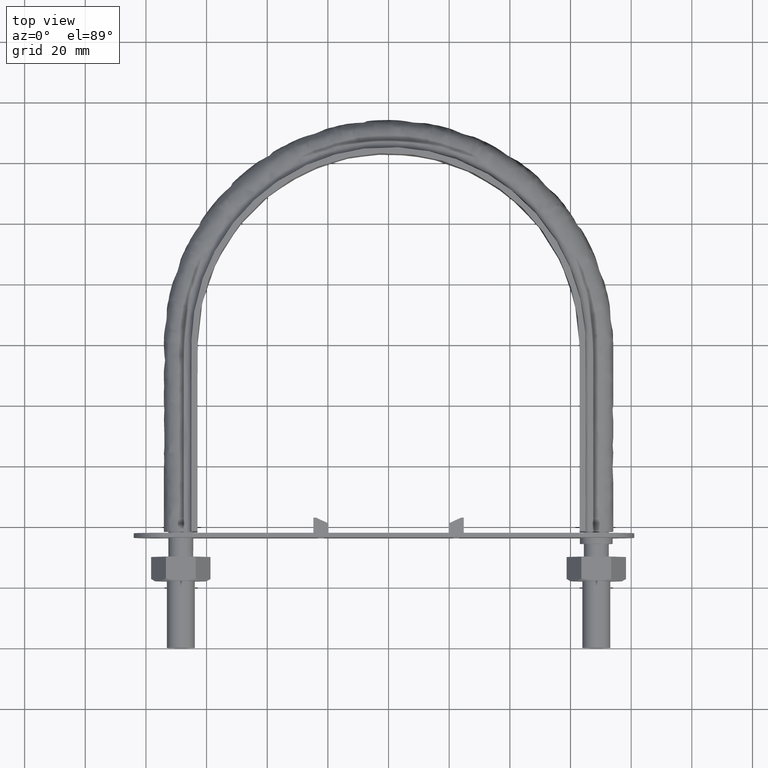
[diagram: clean part render]
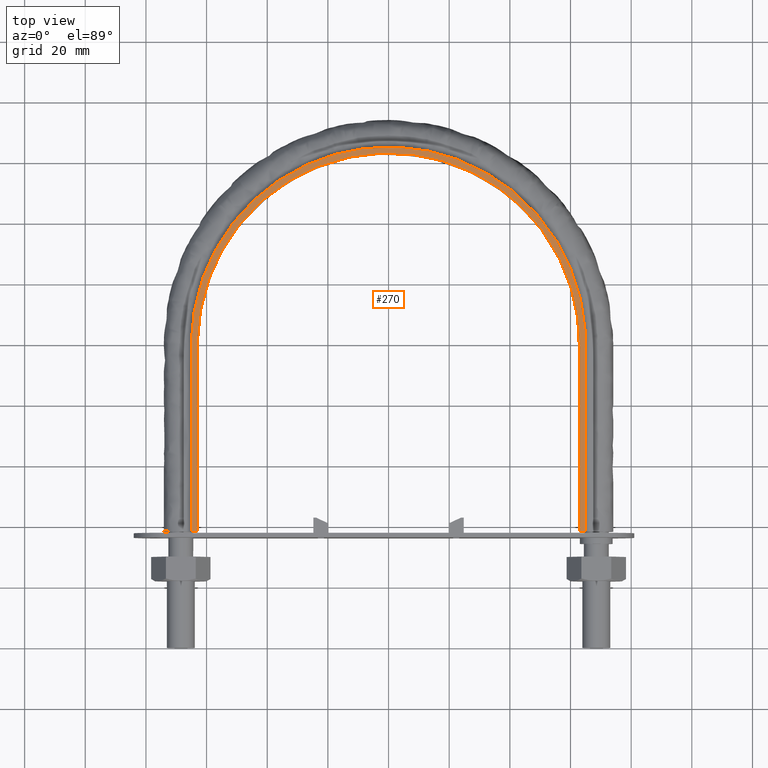
[diagram: same view with one face highlighted and labeled with its STEP entity id]
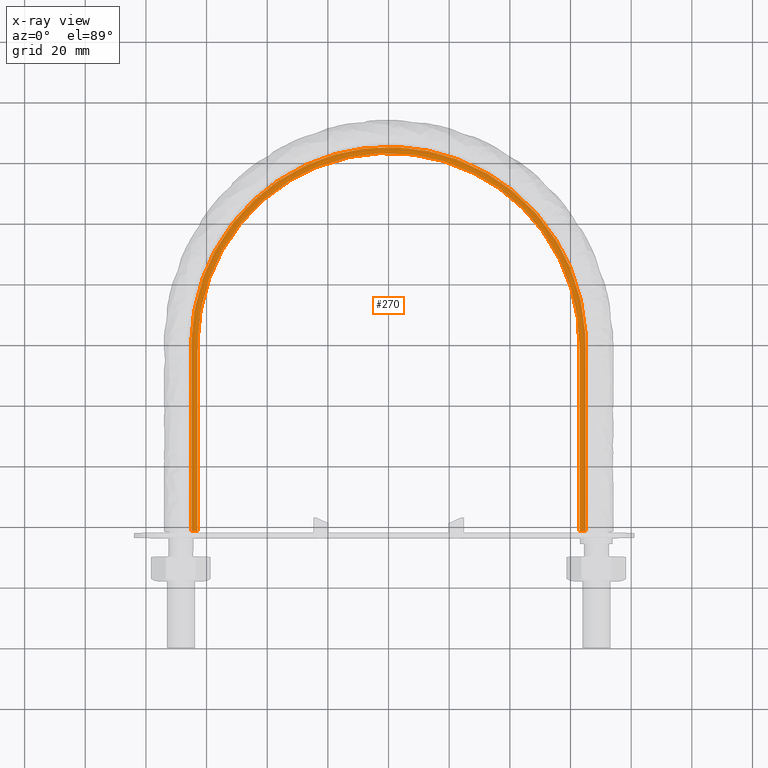
[diagram: x-ray of the same camera — body ghosted, the highlighted face saturated]
A machine part, top view. The second image highlights one B-rep face of the part: STEP entity #270.
The next image is the same camera in x-ray: the body ghosted, the highlighted face saturated — about 0% of this face is hidden behind the body in this view.
In plain terms, the highlighted planar face has unit normal (0, 0, 1).
Its self-contained STEP definition (entity closure, byte-faithful):
#270 = ADVANCED_FACE( '', ( #386 ), #387, .T. );
#386 = FACE_OUTER_BOUND( '', #639, .T. );
#387 = PLANE( '', #640 );
#639 = EDGE_LOOP( '', ( #1574, #1575, #1576, #1577 ) );
#640 = AXIS2_PLACEMENT_3D( '', #1578, #1579, #1580 );
#1574 = ORIENTED_EDGE( '', *, *, #2360, .T. );
#1575 = ORIENTED_EDGE( '', *, *, #2368, .F. );
#1576 = ORIENTED_EDGE( '', *, *, #2363, .T. );
#1577 = ORIENTED_EDGE( '', *, *, #2369, .F. );
#1578 = CARTESIAN_POINT( '', ( 80.0000000000000, 198.300000000000, 12.5000000000000 ) );
#1579 = DIRECTION( '', ( 0.000000000000000, 0.000000000000000, 1.00000000000000 ) );
#1580 = DIRECTION( '', ( 1.22460635382238E-016, 1.00000000000000, 0.000000000000000 ) );
#2360 = EDGE_CURVE( '', #2600, #2597, #2601, .T. );
#2363 = EDGE_CURVE( '', #2605, #2606, #2607, .T. );
#2368 = EDGE_CURVE( '', #2605, #2597, #2614, .T. );
#2369 = EDGE_CURVE( '', #2600, #2606, #2615, .T. );
#2597 = VERTEX_POINT( '', #2991 );
#2600 = VERTEX_POINT( '', #2995 );
#2601 = LINE( '', #2996, #2997 );
#2605 = VERTEX_POINT( '', #3032 );
#2606 = VERTEX_POINT( '', #3033 );
#2607 = LINE( '', #3034, #3035 );
#2614 = B_SPLINE_CURVE_WITH_KNOTS( '', 3, ( #3089, #3090, #3091, #3092, #3093, #3094, #3095, #3096, #3097, #3098, #3099, #3100, #3101, #3102, #3103, #3104, #3105, #3106, #3107, #3108, #3109, #3110, #3111, #3112, #3113, #3114, #3115, #3116, #3117, #3118, #3119, #3120, #3121, #3122, #3123, #3124, #3125, #3126, #3127, #3128, #3129, #3130, #3131, #3132, #3133, #3134, #3135, #3136, #3137, #3138, #3139, #3140, #3141, #3142, #3143, #3144, #3145, #3146, #3147, #3148, #3149, #3150, #3151, #3152, #3153, #3154, #3155, #3156, #3157, #3158, #3159, #3160, #3161, #3162, #3163, #3164, #3165, #3166, #3167, #3168, #3169, #3170, #3171, #3172, #3173, #3174, #3175, #3176 ), .UNSPECIFIED., .F., .F., ( 4, 1, 2, 2, 2, 2, 2, 2, 2, 2, 2, 2, 2, 2, 2, 2, 2, 2, 2, 2, 2, 2, 2, 2, 2, 2, 2, 2, 2, 2, 2, 2, 2, 2, 2, 2, 2, 2, 2, 2, 2, 2, 2, 1, 4 ), ( 4.85722573273506E-017, 0.0403585199906444, 0.0605377799859665, 0.0630601874853818, 0.0655825949847970, 0.0706274099836275, 0.0807170399812885, 0.0857618549801190, 0.0882842624795342, 0.0908066699789495, 0.100896299976611, 0.105941114975441, 0.108463522474856, 0.110985929974272, 0.121075559971933, 0.126120374970763, 0.128642782470179, 0.131165189969594, 0.141254819967255, 0.146299634966086, 0.148822042465501, 0.151344449964916, 0.161434079962577, 0.171523709960238, 0.174046117459654, 0.176568524959069, 0.181613339957899, 0.191702969955561, 0.194225377454976, 0.196747784954391, 0.201792599953222, 0.211882229950883, 0.214404637450298, 0.216927044949713, 0.221971859948544, 0.232061489946205, 0.234583897445620, 0.237106304945036, 0.242151119943866, 0.252240749941527, 0.257285564940357, 0.259807972439772, 0.262330379939188, 0.282509639934509, 0.322868159925153 ), .UNSPECIFIED. );
#2615 = B_SPLINE_CURVE_WITH_KNOTS( '', 3, ( #3177, #3178, #3179, #3180, #3181, #3182, #3183, #3184, #3185, #3186, #3187, #3188, #3189, #3190, #3191, #3192 ), .UNSPECIFIED., .F., .F., ( 4, 3, 1, 1, 1, 1, 1, 1, 3, 4 ), ( 0.0592987804878048, 1.00000000000000, 2.00000000000000, 3.00000000000000, 4.00000000000000, 5.00000000000000, 6.00000000000000, 7.00000000000000, 8.00000000000000, 8.94070121951219 ), .UNSPECIFIED. );
#2991 = CARTESIAN_POINT( '', ( -63.0000000000001, 38.3000000000000, 12.5000000000000 ) );
#2995 = CARTESIAN_POINT( '', ( -65.0000000000000, 38.3000000000000, 12.5000000000000 ) );
#2996 = CARTESIAN_POINT( '', ( -80.0000000000000, 38.3000000000001, 12.5000000000000 ) );
#2997 = VECTOR( '', #3870, 1000.00000000000 );
#3032 = CARTESIAN_POINT( '', ( 63.0000000000001, 38.3000000000000, 12.5000000000000 ) );
#3033 = CARTESIAN_POINT( '', ( 65.0000000000001, 38.3000000000001, 12.5000000000000 ) );
#3034 = CARTESIAN_POINT( '', ( -80.0000000000000, 38.3000000000001, 12.5000000000000 ) );
#3035 = VECTOR( '', #3872, 1000.00000000000 );
#3089 = CARTESIAN_POINT( '', ( 63.0000000000001, 38.3000000000000, 12.5000000000000 ) );
#3090 = CARTESIAN_POINT( '', ( 63.0000000000001, 51.7528561301915, 12.5000000000000 ) );
#3091 = CARTESIAN_POINT( '', ( 63.0000000000001, 71.9321403254790, 12.5000000000000 ) );
#3092 = CARTESIAN_POINT( '', ( 63.0000000000001, 92.1114245207664, 12.5000000000000 ) );
#3093 = CARTESIAN_POINT( '', ( 63.0000000000001, 99.6786560939992, 12.5000000000000 ) );
#3094 = CARTESIAN_POINT( '', ( 63.0036029891679, 100.519465182119, 12.5000000000000 ) );
#3095 = CARTESIAN_POINT( '', ( 62.9669155844543, 102.201015380271, 12.5000000000000 ) );
#3096 = CARTESIAN_POINT( '', ( 62.9314314675281, 103.042572820258, 12.5000000000000 ) );
#3097 = CARTESIAN_POINT( '', ( 62.7742647165870, 105.561712269893, 12.5000000000000 ) );
#3098 = CARTESIAN_POINT( '', ( 62.6026302739461, 107.225838154575, 12.5000000000000 ) );
#3099 = CARTESIAN_POINT( '', ( 61.8953252355575, 112.174183870876, 12.5000000000000 ) );
#3100 = CARTESIAN_POINT( '', ( 61.1688557666381, 115.414738580781, 12.5000000000000 ) );
#3101 = CARTESIAN_POINT( '', ( 59.6981646336119, 120.188380190173, 12.5000000000000 ) );
#3102 = CARTESIAN_POINT( '', ( 59.1440337672952, 121.764970165355, 12.5000000000000 ) );
#3103 = CARTESIAN_POINT( '', ( 58.2133099602673, 124.107077840930, 12.5000000000000 ) );
#3104 = CARTESIAN_POINT( '', ( 57.8862226550761, 124.884260710037, 12.5000000000000 ) );
#3105 = CARTESIAN_POINT( '', ( 57.2044746038232, 126.416807183752, 12.5000000000000 ) );
#3106 = CARTESIAN_POINT( '', ( 56.8491236402779, 127.173949808864, 12.5000000000000 ) );
#3107 = CARTESIAN_POINT( '', ( 55.0006153350253, 130.914407975142, 12.5000000000000 ) );
#3108 = CARTESIAN_POINT( '', ( 53.2945694846637, 133.763454630954, 12.5000000000000 ) );
#3109 = CARTESIAN_POINT( '', ( 50.4058851931547, 137.829135949361, 12.5000000000000 ) );
#3110 = CARTESIAN_POINT( '', ( 49.3877096347451, 139.149497431627, 12.5000000000000 ) );
#3111 = CARTESIAN_POINT( '', ( 47.7757792797261, 141.076640126207, 12.5000000000000 ) );
#3112 = CARTESIAN_POINT( '', ( 47.2235115971916, 141.711010351235, 12.5000000000000 ) );
#3113 = CARTESIAN_POINT( '', ( 46.0938430282918, 142.957490539723, 12.5000000000000 ) );
#3114 = CARTESIAN_POINT( '', ( 45.5184649226947, 143.567446349943, 12.5000000000000 ) );
#3115 = CARTESIAN_POINT( '', ( 42.5895836160396, 146.551721608749, 12.5000000000000 ) );
#3116 = CARTESIAN_POINT( '', ( 40.0808901752949, 148.730515052780, 12.5000000000000 ) );
#3117 = CARTESIAN_POINT( '', ( 36.0701769262574, 151.686658988246, 12.5000000000000 ) );
#3118 = CARTESIAN_POINT( '', ( 34.6921332752078, 152.620208495386, 12.5000000000000 ) );
#3119 = CARTESIAN_POINT( '', ( 32.5629908908397, 153.942321331327, 12.5000000000000 ) );
#3120 = CARTESIAN_POINT( '', ( 31.8429147391925, 154.369970374909, 12.5000000000000 ) );
#3121 = CARTESIAN_POINT( '', ( 30.3817781284526, 155.198830086816, 12.5000000000000 ) );
#3122 = CARTESIAN_POINT( '', ( 29.6404939153229, 155.600049887960, 12.5000000000000 ) );
#3123 = CARTESIAN_POINT( '', ( 25.9147314496091, 157.522247019428, 12.5000000000000 ) );
#3124 = CARTESIAN_POINT( '', ( 22.8468170495402, 158.808839464741, 12.5000000000000 ) );
#3125 = CARTESIAN_POINT( '', ( 18.1166878313116, 160.369745036333, 12.5000000000000 ) );
#3126 = CARTESIAN_POINT( '', ( 16.5184663190759, 160.828159883137, 12.5000000000000 ) );
#3127 = CARTESIAN_POINT( '', ( 14.0879720623324, 161.420378750901, 12.5000000000000 ) );
#3128 = CARTESIAN_POINT( '', ( 13.2722569227007, 161.601817184579, 12.5000000000000 ) );
#3129 = CARTESIAN_POINT( '', ( 11.6296062344383, 161.932414166218, 12.5000000000000 ) );
#3130 = CARTESIAN_POINT( '', ( 10.8011892588898, 162.081826847964, 12.5000000000000 ) );
#3131 = CARTESIAN_POINT( '', ( 6.64837338529780, 162.744621052144, 12.5000000000000 ) );
#3132 = CARTESIAN_POINT( '', ( 3.32680303459538, 163.002956882961, 12.5000000000000 ) );
#3133 = CARTESIAN_POINT( '', ( -3.31504259065480, 163.003571470062, 12.5000000000000 ) );
#3134 = CARTESIAN_POINT( '', ( -6.63531783672263, 162.745838877775, 12.5000000000000 ) );
#3135 = CARTESIAN_POINT( '', ( -10.7848111072922, 162.084654727947, 12.5000000000000 ) );
#3136 = CARTESIAN_POINT( '', ( -11.6143828511466, 161.935271661077, 12.5000000000000 ) );
#3137 = CARTESIAN_POINT( '', ( -13.2582911311271, 161.604830620017, 12.5000000000000 ) );
#3138 = CARTESIAN_POINT( '', ( -14.0745225471330, 161.423468831004, 12.5000000000000 ) );
#3139 = CARTESIAN_POINT( '', ( -16.5062429875162, 160.831507874132, 12.5000000000000 ) );
#3140 = CARTESIAN_POINT( '', ( -18.1048539377693, 160.373303138248, 12.5000000000000 ) );
#3141 = CARTESIAN_POINT( '', ( -22.8350042791568, 158.813427677163, 12.5000000000000 ) );
#3142 = CARTESIAN_POINT( '', ( -25.9014093667637, 157.528041944287, 12.5000000000000 ) );
#3143 = CARTESIAN_POINT( '', ( -29.6236851201293, 155.608987805660, 12.5000000000000 ) );
#3144 = CARTESIAN_POINT( '', ( -30.3637687063948, 155.208745066269, 12.5000000000000 ) );
#3145 = CARTESIAN_POINT( '', ( -31.8269381963086, 154.379327713897, 12.5000000000000 ) );
#3146 = CARTESIAN_POINT( '', ( -32.5478930458141, 153.951430862916, 12.5000000000000 ) );
#3147 = CARTESIAN_POINT( '', ( -34.6792940248365, 152.628704455284, 12.5000000000000 ) );
#3148 = CARTESIAN_POINT( '', ( -36.0583409066396, 151.694918845943, 12.5000000000000 ) );
#3149 = CARTESIAN_POINT( '', ( -40.0708003962987, 148.738874054776, 12.5000000000000 ) );
#3150 = CARTESIAN_POINT( '', ( -42.5789623277134, 146.561220323517, 12.5000000000000 ) );
#3151 = CARTESIAN_POINT( '', ( -45.5058158142334, 143.580661240098, 12.5000000000000 ) );
#3152 = CARTESIAN_POINT( '', ( -46.0807202027165, 142.971564205372, 12.5000000000000 ) );
#3153 = CARTESIAN_POINT( '', ( -47.2093238293025, 141.727061577096, 12.5000000000000 ) );
#3154 = CARTESIAN_POINT( '', ( -47.7629465235345, 141.091591272907, 12.5000000000000 ) );
#3155 = CARTESIAN_POINT( '', ( -49.3772034451763, 139.162827201710, 12.5000000000000 ) );
#3156 = CARTESIAN_POINT( '', ( -50.3964994659766, 137.841671342456, 12.5000000000000 ) );
#3157 = CARTESIAN_POINT( '', ( -53.2875785646770, 133.774634143876, 12.5000000000000 ) );
#3158 = CARTESIAN_POINT( '', ( -54.9939299231489, 130.926038297650, 12.5000000000000 ) );
#3159 = CARTESIAN_POINT( '', ( -56.8421556479950, 127.188518418479, 12.5000000000000 ) );
#3160 = CARTESIAN_POINT( '', ( -57.1974166883330, 126.432083530124, 12.5000000000000 ) );
#3161 = CARTESIAN_POINT( '', ( -57.8789401470319, 124.901208867970, 12.5000000000000 ) );
#3162 = CARTESIAN_POINT( '', ( -58.2057970540346, 124.125293405857, 12.5000000000000 ) );
#3163 = CARTESIAN_POINT( '', ( -59.1381982440397, 121.781012353943, 12.5000000000000 ) );
#3164 = CARTESIAN_POINT( '', ( -59.6931478828082, 120.203330651056, 12.5000000000000 ) );
#3165 = CARTESIAN_POINT( '', ( -61.1657358543387, 115.427513867541, 12.5000000000000 ) );
#3166 = CARTESIAN_POINT( '', ( -61.8927230283381, 112.186965235983, 12.5000000000000 ) );
#3167 = CARTESIAN_POINT( '', ( -62.6008369697937, 107.241078370440, 12.5000000000000 ) );
#3168 = CARTESIAN_POINT( '', ( -62.7727451798713, 105.578182671217, 12.5000000000000 ) );
#3169 = CARTESIAN_POINT( '', ( -62.9304885137462, 103.061565974202, 12.5000000000000 ) );
#3170 = CARTESIAN_POINT( '', ( -62.9662674057679, 102.219356753179, 12.5000000000000 ) );
#3171 = CARTESIAN_POINT( '', ( -63.0034563058177, 100.537313962985, 12.5000000000000 ) );
#3172 = CARTESIAN_POINT( '', ( -63.0000000000000, 99.6962649018372, 12.5000000000000 ) );
#3173 = CARTESIAN_POINT( '', ( -63.0000000000000, 92.1268623796929, 12.5000000000000 ) );
#3174 = CARTESIAN_POINT( '', ( -63.0000000000000, 71.9417889873082, 12.5000000000000 ) );
#3175 = CARTESIAN_POINT( '', ( -63.0000000000000, 51.7567155949233, 12.5000000000000 ) );
#3176 = CARTESIAN_POINT( '', ( -63.0000000000000, 38.3000000000000, 12.5000000000000 ) );
#3177 = CARTESIAN_POINT( '', ( -65.0000000000000, 38.3000000000000, 12.5000000000000 ) );
#3178 = CARTESIAN_POINT( '', ( -65.0000000000000, 58.8700000000000, 12.5000000000000 ) );
#3179 = CARTESIAN_POINT( '', ( -65.0000000000000, 79.4400000000000, 12.5000000000000 ) );
#3180 = CARTESIAN_POINT( '', ( -65.0000000000000, 100.010000000000, 12.5000000000000 ) );
#3181 = CARTESIAN_POINT( '', ( -65.0000000000000, 109.722642194517, 12.5000000000000 ) );
#3182 = CARTESIAN_POINT( '', ( -60.5621560385809, 129.179409743994, 12.5000000000000 ) );
#3183 = CARTESIAN_POINT( '', ( -41.9103123469103, 152.562760860094, 12.5000000000000 ) );
#3184 = CARTESIAN_POINT( '', ( -14.9576172986841, 165.543824978164, 12.5000000000000 ) );
#3185 = CARTESIAN_POINT( '', ( 14.9576172986842, 165.543824978164, 12.5000000000000 ) );
#3186 = CARTESIAN_POINT( '', ( 41.9103123469103, 152.562760860094, 12.5000000000000 ) );
#3187 = CARTESIAN_POINT( '', ( 60.5621560385810, 129.179409743994, 12.5000000000000 ) );
#3188 = CARTESIAN_POINT( '', ( 65.0000000000000, 109.722642194517, 12.5000000000000 ) );
#3189 = CARTESIAN_POINT( '', ( 65.0000000000001, 100.010000000000, 12.5000000000000 ) );
#3190 = CARTESIAN_POINT( '', ( 65.0000000000000, 79.4400000000000, 12.5000000000000 ) );
#3191 = CARTESIAN_POINT( '', ( 65.0000000000000, 58.8700000000000, 12.5000000000000 ) );
#3192 = CARTESIAN_POINT( '', ( 65.0000000000000, 38.3000000000001, 12.5000000000000 ) );
#3870 = DIRECTION( '', ( 1.00000000000000, -1.22460635382238E-016, 0.000000000000000 ) );
#3872 = DIRECTION( '', ( 1.00000000000000, -1.22460635382238E-016, 0.000000000000000 ) );